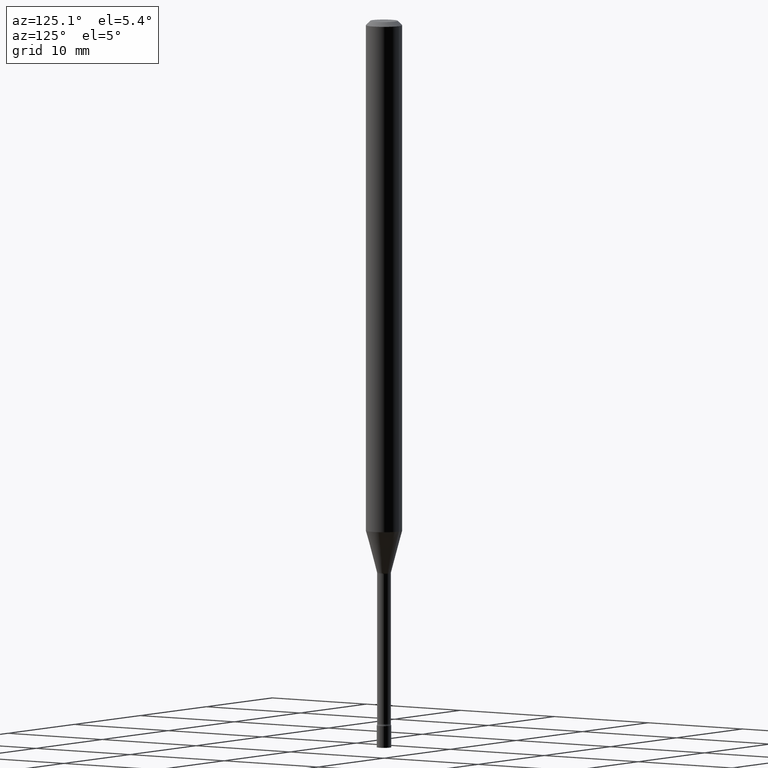
[diagram: clean part render]
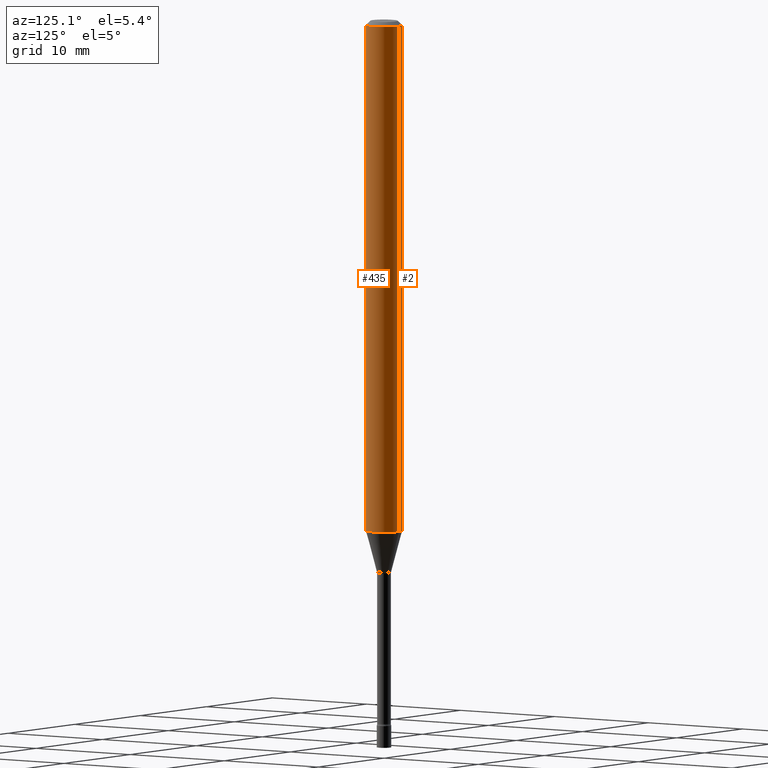
[diagram: same view with one multi-face feature highlighted, each face labeled with its STEP entity id]
A machine part, auxiliary view. The highlighted faces form ONE feature: a constant-radius fillet chain: 2 tangent blend faces with common blend radius 1.5875 mm. The faces share edges in the B-rep.
Their STEP definitions:
[1] entity #2 (Cylinder):
#1 = DIRECTION ( 'NONE',  ( -6.982962677686265922E-15, -1.000000000000000000, 4.370956789862821150E-15 ) ) ;
#2 = ADVANCED_FACE ( 'NONE', ( #114 ), #40, .T. ) ;
#13 = VERTEX_POINT ( 'NONE', #268 ) ;
#28 = AXIS2_PLACEMENT_3D ( 'NONE', #442, #324, #159 ) ;
#29 = EDGE_LOOP ( 'NONE', ( #440, #275, #458, #427 ) ) ;
#36 = VERTEX_POINT ( 'NONE', #271 ) ;
#40 = CYLINDRICAL_SURFACE ( 'NONE', #28, 0.06250000000000000000 ) ;
#52 = VERTEX_POINT ( 'NONE', #387 ) ;
#98 = DIRECTION ( 'NONE',  ( -2.445461215800333059E-29, 3.491492208706202106E-15, 1.000000000000000000 ) ) ;
#103 = EDGE_CURVE ( 'NONE', #13, #52, #303, .T. ) ;
#114 = FACE_OUTER_BOUND ( 'NONE', #29, .T. ) ;
#125 = EDGE_CURVE ( 'NONE', #52, #36, #314, .T. ) ;
#129 = CIRCLE ( 'NONE', #178, 0.06250000000000000000 ) ;
#132 = LINE ( 'NONE', #174, #203 ) ;
#155 = DIRECTION ( 'NONE',  ( -2.445461215800332779E-29, 3.491492208706202500E-15, 1.000000000000000000 ) ) ;
#159 = DIRECTION ( 'NONE',  ( -6.982962677686265922E-15, -1.000000000000000000, 3.491492208706202106E-15 ) ) ;
#174 = CARTESIAN_POINT ( 'NONE',  ( -4.364351673553916201E-16, -0.06250000000000000000, 2.182182630441376316E-16 ) ) ;
#176 = CARTESIAN_POINT ( 'NONE',  ( 4.440892098500625669E-16, 0.06250000000000000000, -2.182182630441376316E-16 ) ) ;
#178 = AXIS2_PLACEMENT_3D ( 'NONE', #233, #155, #1 ) ;
#194 = VECTOR ( 'NONE', #98, 39.37007874015748143 ) ;
#203 = VECTOR ( 'NONE', #261, 39.37007874015748143 ) ;
#211 = EDGE_CURVE ( 'NONE', #411, #36, #132, .T. ) ;
#233 = CARTESIAN_POINT ( 'NONE',  ( 4.290439475313700951E-29, -6.125648570174013165E-15, -1.754450018504814635 ) ) ;
#261 = DIRECTION ( 'NONE',  ( -2.445461215800333059E-29, 3.491492208706202106E-15, 1.000000000000000000 ) ) ;
#268 = CARTESIAN_POINT ( 'NONE',  ( 4.440892098501052147E-16, 0.06249999999999384520, -1.754450018504814857 ) ) ;
#271 = CARTESIAN_POINT ( 'NONE',  ( -4.364351673553912750E-16, -0.06250000000000005551, -0.01499999999999981209 ) ) ;
#275 = ORIENTED_EDGE ( 'NONE', *, *, #340, .T. ) ;
#290 = CARTESIAN_POINT ( 'NONE',  ( -4.364351673553489230E-16, -0.06250000000000614786, -1.754450018504814190 ) ) ;
#303 = LINE ( 'NONE', #176, #194 ) ;
#314 = CIRCLE ( 'NONE', #404, 0.06250000000000000000 ) ;
#324 = DIRECTION ( 'NONE',  ( -2.445461215800332779E-29, 3.491492208706202500E-15, 1.000000000000000000 ) ) ;
#340 = EDGE_CURVE ( 'NONE', #13, #411, #129, .T. ) ;
#370 = DIRECTION ( 'NONE',  ( -6.982962677686265922E-15, -1.000000000000000000, 3.483106191921935554E-15 ) ) ;
#387 = CARTESIAN_POINT ( 'NONE',  ( 4.440892098501058063E-16, 0.06249999999999995143, -0.01500000000000024751 ) ) ;
#404 = AXIS2_PLACEMENT_3D ( 'NONE', #471, #516, #370 ) ;
#411 = VERTEX_POINT ( 'NONE', #290 ) ;
#427 = ORIENTED_EDGE ( 'NONE', *, *, #125, .F. ) ;
#440 = ORIENTED_EDGE ( 'NONE', *, *, #103, .F. ) ;
#442 = CARTESIAN_POINT ( 'NONE',  ( 0.000000000000000000, 0.000000000000000000, 0.000000000000000000 ) ) ;
#458 = ORIENTED_EDGE ( 'NONE', *, *, #211, .T. ) ;
#471 = CARTESIAN_POINT ( 'NONE',  ( 3.668191823700506017E-31, -5.237238313059314424E-17, -0.01500000000000003067 ) ) ;
#516 = DIRECTION ( 'NONE',  ( -2.445461215800332779E-29, 3.491492208706202500E-15, 1.000000000000000000 ) ) ;
[2] entity #435 (Cylinder):
#7 = CARTESIAN_POINT ( 'NONE',  ( 0.000000000000000000, 0.000000000000000000, 0.000000000000000000 ) ) ;
#13 = VERTEX_POINT ( 'NONE', #268 ) ;
#36 = VERTEX_POINT ( 'NONE', #271 ) ;
#52 = VERTEX_POINT ( 'NONE', #387 ) ;
#57 = FACE_OUTER_BOUND ( 'NONE', #228, .T. ) ;
#71 = AXIS2_PLACEMENT_3D ( 'NONE', #446, #241, #77 ) ;
#77 = DIRECTION ( 'NONE',  ( -6.982962677686265922E-15, -1.000000000000000000, 3.483106191921935554E-15 ) ) ;
#98 = DIRECTION ( 'NONE',  ( -2.445461215800333059E-29, 3.491492208706202106E-15, 1.000000000000000000 ) ) ;
#103 = EDGE_CURVE ( 'NONE', #13, #52, #303, .T. ) ;
#121 = CARTESIAN_POINT ( 'NONE',  ( 4.290439475313700951E-29, -6.125648570174013165E-15, -1.754450018504814635 ) ) ;
#132 = LINE ( 'NONE', #174, #203 ) ;
#163 = AXIS2_PLACEMENT_3D ( 'NONE', #121, #283, #384 ) ;
#167 = CYLINDRICAL_SURFACE ( 'NONE', #315, 0.06250000000000000000 ) ;
#174 = CARTESIAN_POINT ( 'NONE',  ( -4.364351673553916201E-16, -0.06250000000000000000, 2.182182630441376316E-16 ) ) ;
#176 = CARTESIAN_POINT ( 'NONE',  ( 4.440892098500625669E-16, 0.06250000000000000000, -2.182182630441376316E-16 ) ) ;
#186 = CIRCLE ( 'NONE', #71, 0.06250000000000000000 ) ;
#194 = VECTOR ( 'NONE', #98, 39.37007874015748143 ) ;
#203 = VECTOR ( 'NONE', #261, 39.37007874015748143 ) ;
#211 = EDGE_CURVE ( 'NONE', #411, #36, #132, .T. ) ;
#218 = DIRECTION ( 'NONE',  ( -2.445461215800332779E-29, 3.491492208706202500E-15, 1.000000000000000000 ) ) ;
#228 = EDGE_LOOP ( 'NONE', ( #418, #467, #293, #481 ) ) ;
#241 = DIRECTION ( 'NONE',  ( -2.445461215800332779E-29, 3.491492208706202500E-15, 1.000000000000000000 ) ) ;
#261 = DIRECTION ( 'NONE',  ( -2.445461215800333059E-29, 3.491492208706202106E-15, 1.000000000000000000 ) ) ;
#268 = CARTESIAN_POINT ( 'NONE',  ( 4.440892098501052147E-16, 0.06249999999999384520, -1.754450018504814857 ) ) ;
#271 = CARTESIAN_POINT ( 'NONE',  ( -4.364351673553912750E-16, -0.06250000000000005551, -0.01499999999999981209 ) ) ;
#282 = EDGE_CURVE ( 'NONE', #36, #52, #186, .T. ) ;
#283 = DIRECTION ( 'NONE',  ( -2.445461215800332779E-29, 3.491492208706202500E-15, 1.000000000000000000 ) ) ;
#289 = CIRCLE ( 'NONE', #163, 0.06250000000000000000 ) ;
#290 = CARTESIAN_POINT ( 'NONE',  ( -4.364351673553489230E-16, -0.06250000000000614786, -1.754450018504814190 ) ) ;
#293 = ORIENTED_EDGE ( 'NONE', *, *, #282, .F. ) ;
#303 = LINE ( 'NONE', #176, #194 ) ;
#315 = AXIS2_PLACEMENT_3D ( 'NONE', #7, #218, #327 ) ;
#327 = DIRECTION ( 'NONE',  ( -6.982962677686265922E-15, -1.000000000000000000, 3.491492208706202106E-15 ) ) ;
#384 = DIRECTION ( 'NONE',  ( -6.982962677686265922E-15, -1.000000000000000000, 4.370956789862821150E-15 ) ) ;
#387 = CARTESIAN_POINT ( 'NONE',  ( 4.440892098501058063E-16, 0.06249999999999995143, -0.01500000000000024751 ) ) ;
#411 = VERTEX_POINT ( 'NONE', #290 ) ;
#418 = ORIENTED_EDGE ( 'NONE', *, *, #423, .T. ) ;
#423 = EDGE_CURVE ( 'NONE', #411, #13, #289, .T. ) ;
#435 = ADVANCED_FACE ( 'NONE', ( #57 ), #167, .T. ) ;
#446 = CARTESIAN_POINT ( 'NONE',  ( 3.668191823700506017E-31, -5.237238313059314424E-17, -0.01500000000000003067 ) ) ;
#467 = ORIENTED_EDGE ( 'NONE', *, *, #103, .T. ) ;
#481 = ORIENTED_EDGE ( 'NONE', *, *, #211, .F. ) ;